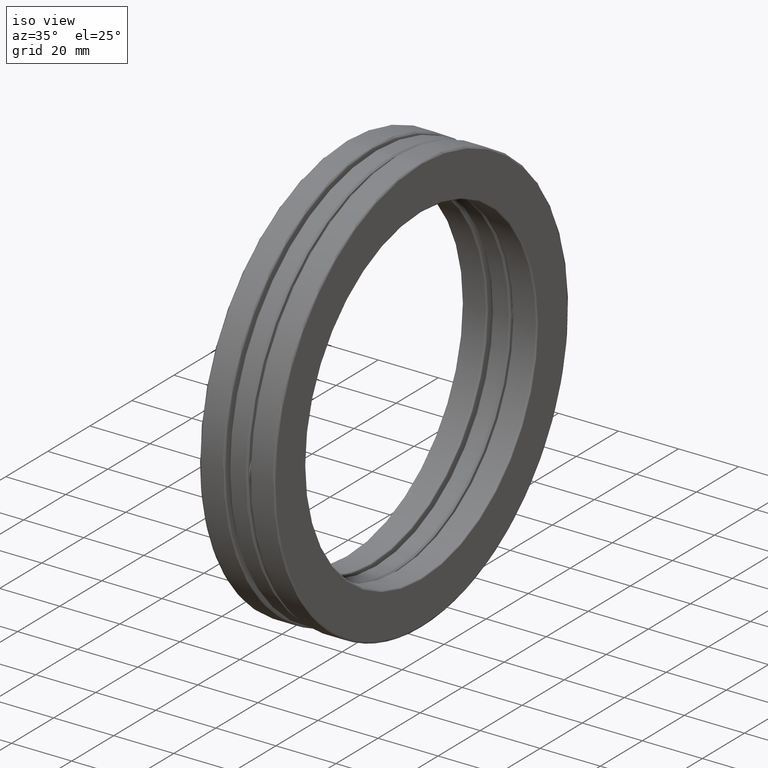
[diagram: clean part render]
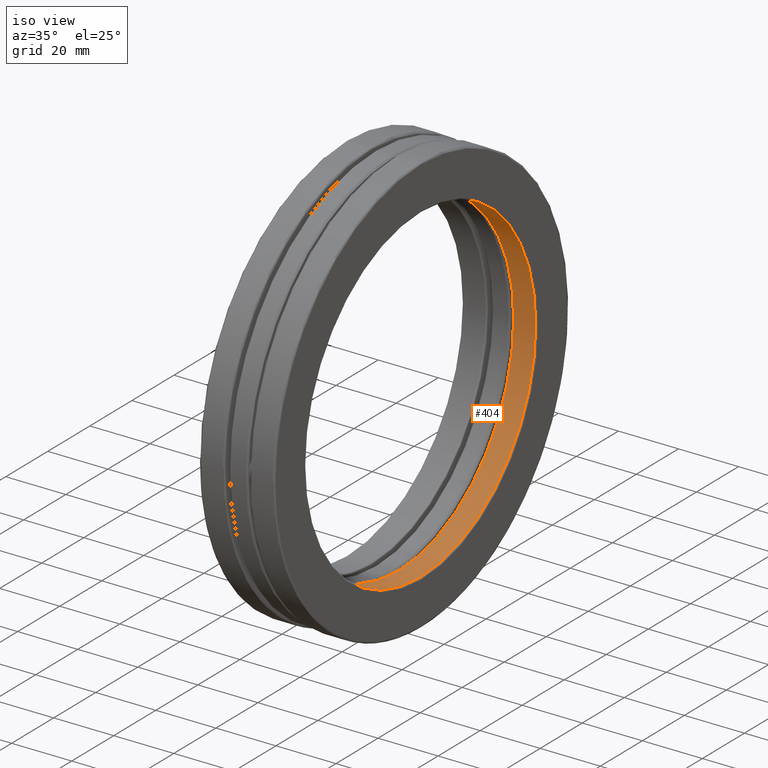
[diagram: same view with one face highlighted and labeled with its STEP entity id]
A machine part, iso view. The second image highlights one B-rep face of the part: STEP entity #404.
In plain terms, the highlighted cylindrical surface (bore or boss wall) has radius 55.0037 mm, axis along (-1, -0, -0).
Its self-contained STEP definition (entity closure, byte-faithful):
#44 = VERTEX_POINT ( 'NONE', #495 ) ;
#70 = DIRECTION ( 'NONE',  ( -1.000000000000000000, -0.0000000000000000000, -0.0000000000000000000 ) ) ;
#85 = EDGE_CURVE ( 'NONE', #526, #526, #259, .T. ) ;
#96 = AXIS2_PLACEMENT_3D ( 'NONE', #513, #70, #505 ) ;
#119 = ORIENTED_EDGE ( 'NONE', *, *, #329, .F. ) ;
#120 = FACE_OUTER_BOUND ( 'NONE', #797, .T. ) ;
#194 = AXIS2_PLACEMENT_3D ( 'NONE', #776, #198, #578 ) ;
#198 = DIRECTION ( 'NONE',  ( -1.000000000000000000, -0.0000000000000000000, -0.0000000000000000000 ) ) ;
#220 = CYLINDRICAL_SURFACE ( 'NONE', #96, 2.165500000000000600 ) ;
#259 = CIRCLE ( 'NONE', #493, 2.165500000000000600 ) ;
#270 = CIRCLE ( 'NONE', #194, 2.165500000000000600 ) ;
#329 = EDGE_CURVE ( 'NONE', #44, #44, #270, .T. ) ;
#391 = FACE_OUTER_BOUND ( 'NONE', #708, .T. ) ;
#402 = DIRECTION ( 'NONE',  ( 0.0000000000000000000, 0.0000000000000000000, 1.000000000000000000 ) ) ;
#404 = ADVANCED_FACE ( 'NONE', ( #120, #391 ), #220, .F. ) ;
#463 = CARTESIAN_POINT ( 'NONE',  ( 0.1840032800000009600, 0.0000000000000000000, 0.0000000000000000000 ) ) ;
#493 = AXIS2_PLACEMENT_3D ( 'NONE', #463, #741, #402 ) ;
#495 = CARTESIAN_POINT ( 'NONE',  ( 0.4720000000000012000, 0.0000000000000000000, 2.165500000000000600 ) ) ;
#505 = DIRECTION ( 'NONE',  ( 0.0000000000000000000, 0.0000000000000000000, 1.000000000000000000 ) ) ;
#513 = CARTESIAN_POINT ( 'NONE',  ( 0.0000000000000000000, 0.0000000000000000000, 0.0000000000000000000 ) ) ;
#526 = VERTEX_POINT ( 'NONE', #758 ) ;
#578 = DIRECTION ( 'NONE',  ( 0.0000000000000000000, 0.0000000000000000000, 1.000000000000000000 ) ) ;
#685 = ORIENTED_EDGE ( 'NONE', *, *, #85, .T. ) ;
#708 = EDGE_LOOP ( 'NONE', ( #119 ) ) ;
#741 = DIRECTION ( 'NONE',  ( -1.000000000000000000, -0.0000000000000000000, -0.0000000000000000000 ) ) ;
#758 = CARTESIAN_POINT ( 'NONE',  ( 0.1840032800000009600, 0.0000000000000000000, 2.165500000000000600 ) ) ;
#776 = CARTESIAN_POINT ( 'NONE',  ( 0.4720000000000012000, 0.0000000000000000000, 0.0000000000000000000 ) ) ;
#797 = EDGE_LOOP ( 'NONE', ( #685 ) ) ;